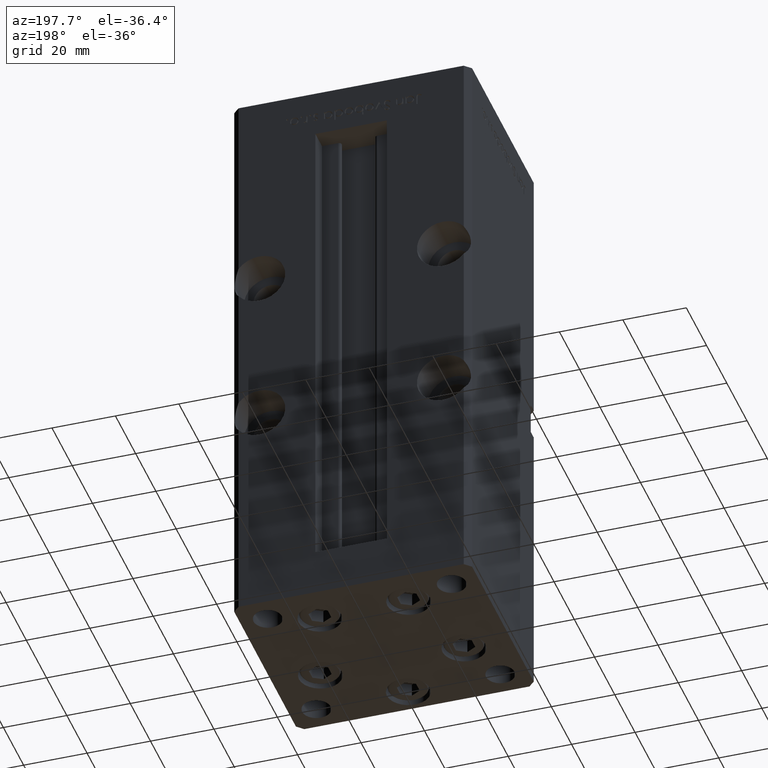
[diagram: clean part render]
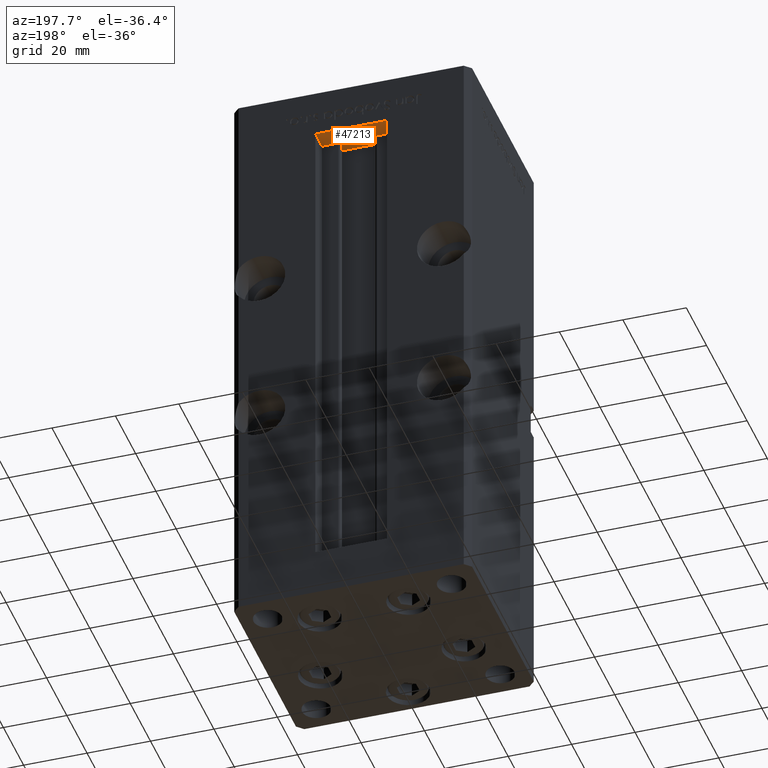
[diagram: same view with one face highlighted and labeled with its STEP entity id]
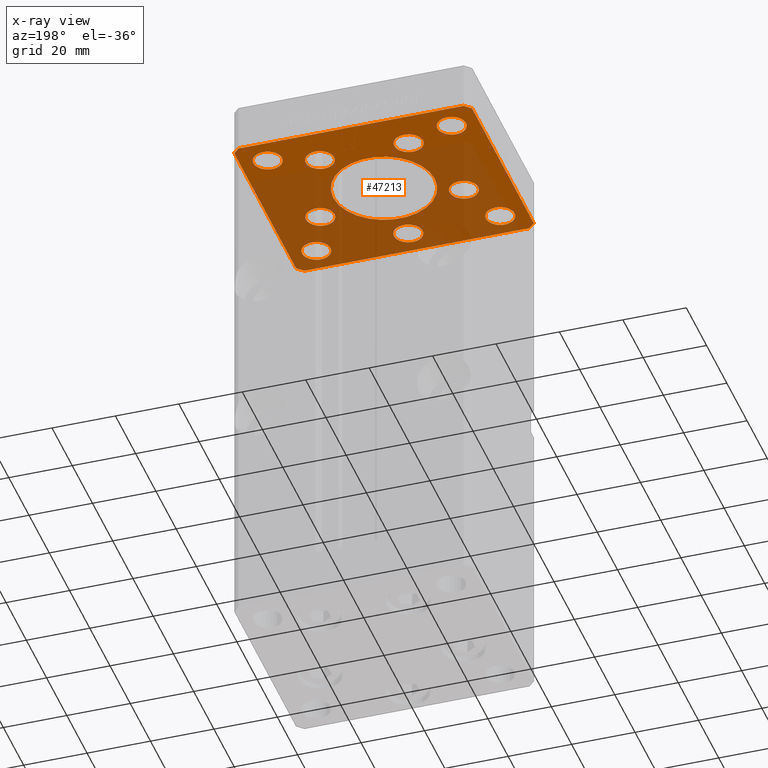
[diagram: x-ray of the same camera — body ghosted, the highlighted face saturated]
A machine part, auxiliary view. The second image highlights one B-rep face of the part: STEP entity #47213.
The next image is the same camera in x-ray: the body ghosted, the highlighted face saturated — about 62% of this face is hidden behind the body in this view.
In plain terms, the highlighted planar face has unit normal (0, 0, 1).
Its self-contained STEP definition (entity closure, byte-faithful):
#206 = VECTOR ( 'NONE', #37308, 1000.000000000000000 ) ;
#224 = EDGE_LOOP ( 'NONE', ( #35265, #31194, #7091, #4228, #47035, #1021, #17012, #4451 ) ) ;
#328 = CARTESIAN_POINT ( 'NONE',  ( 33.50000000000000000, 24.00000000000000355, -15.00000000000000000 ) ) ;
#426 = CARTESIAN_POINT ( 'NONE',  ( 29.00000000000000000, 24.00000000000000355, -15.00000000000000000 ) ) ;
#437 = CARTESIAN_POINT ( 'NONE',  ( 24.50000000000000711, -23.99999999999999645, -15.00000000000000000 ) ) ;
#459 = CARTESIAN_POINT ( 'NONE',  ( -27.12741699796953299, -8.000000000000000000, -15.00000000000000000 ) ) ;
#530 = CARTESIAN_POINT ( 'NONE',  ( 0.000000000000000000, 0.000000000000000000, -15.00000000000000000 ) ) ;
#577 = FACE_BOUND ( 'NONE', #50652, .T. ) ;
#632 = AXIS2_PLACEMENT_3D ( 'NONE', #50768, #34083, #17674 ) ;
#760 = EDGE_CURVE ( 'NONE', #32134, #36980, #21397, .T. ) ;
#772 = CARTESIAN_POINT ( 'NONE',  ( 13.99106857963324124, 19.50000000000000000, -15.00000000000000000 ) ) ;
#1021 = ORIENTED_EDGE ( 'NONE', *, *, #34895, .F. ) ;
#1064 = VERTEX_POINT ( 'NONE', #52619 ) ;
#1162 = ORIENTED_EDGE ( 'NONE', *, *, #28053, .T. ) ;
#1413 = LINE ( 'NONE', #13802, #38844 ) ;
#1865 = EDGE_CURVE ( 'NONE', #34707, #1064, #31251, .T. ) ;
#2002 = ORIENTED_EDGE ( 'NONE', *, *, #14079, .T. ) ;
#2268 = CARTESIAN_POINT ( 'NONE',  ( -35.50000000000000711, 32.49999999999997868, -15.00000000000000000 ) ) ;
#2507 = CIRCLE ( 'NONE', #37699, 4.499999999999997335 ) ;
#2510 = CARTESIAN_POINT ( 'NONE',  ( 0.000000000000000000, 0.000000000000000000, -15.00000000000000000 ) ) ;
#2638 = CARTESIAN_POINT ( 'NONE',  ( -22.62741699796953299, -8.000000000000000000, -15.00000000000000000 ) ) ;
#3296 = CIRCLE ( 'NONE', #17017, 4.500000000000000888 ) ;
#3502 = DIRECTION ( 'NONE',  ( 1.000000000000000000, 0.000000000000000000, 0.000000000000000000 ) ) ;
#4159 = AXIS2_PLACEMENT_3D ( 'NONE', #36281, #14773, #39500 ) ;
#4228 = ORIENTED_EDGE ( 'NONE', *, *, #11530, .F. ) ;
#4363 = PLANE ( 'NONE',  #46201 ) ;
#4451 = ORIENTED_EDGE ( 'NONE', *, *, #50103, .F. ) ;
#4624 = DIRECTION ( 'NONE',  ( -1.000000000000000000, 0.000000000000000000, 0.000000000000000000 ) ) ;
#4761 = VERTEX_POINT ( 'NONE', #34777 ) ;
#4888 = CARTESIAN_POINT ( 'NONE',  ( -16.00000000000000000, 1.959434878635765131E-15, -15.00000000000000000 ) ) ;
#5165 = CIRCLE ( 'NONE', #35239, 4.500000000000000888 ) ;
#5819 = EDGE_CURVE ( 'NONE', #45773, #50261, #7331, .T. ) ;
#5901 = DIRECTION ( 'NONE',  ( 1.000000000000000000, 0.000000000000000000, 0.000000000000000000 ) ) ;
#6174 = CARTESIAN_POINT ( 'NONE',  ( 22.62741699796953299, -8.000000000000000000, -15.00000000000000000 ) ) ;
#6410 = EDGE_CURVE ( 'NONE', #4761, #19772, #25357, .T. ) ;
#7091 = ORIENTED_EDGE ( 'NONE', *, *, #36788, .F. ) ;
#7169 = CIRCLE ( 'NONE', #29374, 4.500000000000000888 ) ;
#7287 = LINE ( 'NONE', #48157, #50924 ) ;
#7331 = CIRCLE ( 'NONE', #8221, 16.00000000000000000 ) ;
#7421 = CARTESIAN_POINT ( 'NONE',  ( -18.12741699796953654, -8.000000000000000000, -15.00000000000000000 ) ) ;
#7867 = CARTESIAN_POINT ( 'NONE',  ( -33.50000000000000000, -23.99999999999999645, -15.00000000000000000 ) ) ;
#8141 = FACE_BOUND ( 'NONE', #53120, .T. ) ;
#8185 = VECTOR ( 'NONE', #37922, 1000.000000000000000 ) ;
#8221 = AXIS2_PLACEMENT_3D ( 'NONE', #2510, #14880, #19422 ) ;
#8289 = VERTEX_POINT ( 'NONE', #26795 ) ;
#8506 = DIRECTION ( 'NONE',  ( 0.000000000000000000, 0.000000000000000000, 1.000000000000000000 ) ) ;
#8590 = CIRCLE ( 'NONE', #14584, 4.500000000000001776 ) ;
#8755 = CARTESIAN_POINT ( 'NONE',  ( 16.00000000000000000, 0.000000000000000000, -15.00000000000000000 ) ) ;
#8769 = ORIENTED_EDGE ( 'NONE', *, *, #46342, .F. ) ;
#8850 = EDGE_LOOP ( 'NONE', ( #16689, #14242 ) ) ;
#8919 = FACE_BOUND ( 'NONE', #9956, .T. ) ;
#8921 = CARTESIAN_POINT ( 'NONE',  ( 29.00000000000000355, -23.99999999999999645, -15.00000000000000000 ) ) ;
#9005 = VERTEX_POINT ( 'NONE', #459 ) ;
#9213 = DIRECTION ( 'NONE',  ( 0.7071067811865512365, -0.7071067811865439090, 0.000000000000000000 ) ) ;
#9315 = VERTEX_POINT ( 'NONE', #7421 ) ;
#9926 = CARTESIAN_POINT ( 'NONE',  ( -37.50000000000001421, 30.50000000000000000, -15.00000000000000000 ) ) ;
#9956 = EDGE_LOOP ( 'NONE', ( #46650, #33646 ) ) ;
#10193 = CIRCLE ( 'NONE', #4159, 4.499999999999999112 ) ;
#10431 = EDGE_CURVE ( 'NONE', #36980, #32134, #32347, .T. ) ;
#10597 = CARTESIAN_POINT ( 'NONE',  ( -35.50000000000001421, -32.50000000000000711, -15.00000000000000000 ) ) ;
#10977 = EDGE_CURVE ( 'NONE', #9315, #9005, #14316, .T. ) ;
#11530 = EDGE_CURVE ( 'NONE', #43486, #46973, #19956, .T. ) ;
#11571 = CARTESIAN_POINT ( 'NONE',  ( 18.12741699796953299, -8.000000000000000000, -15.00000000000000000 ) ) ;
#11620 = DIRECTION ( 'NONE',  ( -1.000000000000000000, 0.000000000000000000, 0.000000000000000000 ) ) ;
#12098 = CARTESIAN_POINT ( 'NONE',  ( 0.000000000000000000, -24.00000000000001066, -15.00000000000000000 ) ) ;
#12420 = CARTESIAN_POINT ( 'NONE',  ( 35.50000000000000000, 32.49999999999999289, -15.00000000000000000 ) ) ;
#12425 = EDGE_CURVE ( 'NONE', #19772, #4761, #41841, .T. ) ;
#12957 = DIRECTION ( 'NONE',  ( -0.000000000000000000, 0.000000000000000000, 1.000000000000000000 ) ) ;
#13314 = EDGE_CURVE ( 'NONE', #47049, #25084, #34164, .T. ) ;
#13383 = CARTESIAN_POINT ( 'NONE',  ( -29.00000000000000000, 24.00000000000000711, -15.00000000000000000 ) ) ;
#13580 = EDGE_CURVE ( 'NONE', #14526, #8289, #24737, .T. ) ;
#13672 = CIRCLE ( 'NONE', #48029, 16.00000000000000000 ) ;
#13802 = CARTESIAN_POINT ( 'NONE',  ( -37.50000000000000000, -30.50000000000004263, -15.00000000000000000 ) ) ;
#14079 = EDGE_CURVE ( 'NONE', #52381, #37505, #3296, .T. ) ;
#14242 = ORIENTED_EDGE ( 'NONE', *, *, #19504, .F. ) ;
#14316 = CIRCLE ( 'NONE', #21156, 4.499999999999997335 ) ;
#14513 = DIRECTION ( 'NONE',  ( -1.000000000000000000, 0.000000000000000000, 0.000000000000000000 ) ) ;
#14526 = VERTEX_POINT ( 'NONE', #35780 ) ;
#14584 = AXIS2_PLACEMENT_3D ( 'NONE', #12098, #28498, #3502 ) ;
#14773 = DIRECTION ( 'NONE',  ( 0.000000000000000000, -0.000000000000000000, -1.000000000000000000 ) ) ;
#14880 = DIRECTION ( 'NONE',  ( 0.000000000000000000, -0.000000000000000000, -1.000000000000000000 ) ) ;
#14906 = CARTESIAN_POINT ( 'NONE',  ( 27.12741699796953654, -8.000000000000000000, -15.00000000000000000 ) ) ;
#15534 = DIRECTION ( 'NONE',  ( 1.000000000000000000, 0.000000000000000000, 0.000000000000000000 ) ) ;
#15659 = DIRECTION ( 'NONE',  ( -0.000000000000000000, -0.000000000000000000, -1.000000000000000000 ) ) ;
#16241 = VECTOR ( 'NONE', #43463, 1000.000000000000000 ) ;
#16689 = ORIENTED_EDGE ( 'NONE', *, *, #23235, .F. ) ;
#16914 = CARTESIAN_POINT ( 'NONE',  ( -33.50000000000000000, 24.00000000000000711, -15.00000000000000000 ) ) ;
#16919 = DIRECTION ( 'NONE',  ( 1.000000000000000000, 0.000000000000000000, 0.000000000000000000 ) ) ;
#16968 = FACE_BOUND ( 'NONE', #38859, .T. ) ;
#17012 = ORIENTED_EDGE ( 'NONE', *, *, #13314, .F. ) ;
#17017 = AXIS2_PLACEMENT_3D ( 'NONE', #37756, #17298, #50111 ) ;
#17082 = DIRECTION ( 'NONE',  ( 1.000000000000000000, 0.000000000000000000, 0.000000000000000000 ) ) ;
#17298 = DIRECTION ( 'NONE',  ( 0.000000000000000000, 0.000000000000000000, 1.000000000000000000 ) ) ;
#17674 = DIRECTION ( 'NONE',  ( 1.000000000000000000, 0.000000000000000000, 0.000000000000000000 ) ) ;
#17703 = DIRECTION ( 'NONE',  ( 0.000000000000000000, -0.000000000000000000, -1.000000000000000000 ) ) ;
#17953 = AXIS2_PLACEMENT_3D ( 'NONE', #13383, #42144, #25223 ) ;
#18437 = ORIENTED_EDGE ( 'NONE', *, *, #40697, .F. ) ;
#18526 = DIRECTION ( 'NONE',  ( 0.000000000000000000, -0.000000000000000000, -1.000000000000000000 ) ) ;
#18664 = EDGE_CURVE ( 'NONE', #37505, #52381, #43659, .T. ) ;
#18883 = VECTOR ( 'NONE', #51421, 1000.000000000000000 ) ;
#19422 = DIRECTION ( 'NONE',  ( 1.000000000000000000, 0.000000000000000000, 0.000000000000000000 ) ) ;
#19434 = DIRECTION ( 'NONE',  ( 1.000000000000000000, 0.000000000000000000, 0.000000000000000000 ) ) ;
#19504 = EDGE_CURVE ( 'NONE', #19878, #35276, #47086, .T. ) ;
#19615 = AXIS2_PLACEMENT_3D ( 'NONE', #6174, #18526, #5901 ) ;
#19772 = VERTEX_POINT ( 'NONE', #40369 ) ;
#19878 = VERTEX_POINT ( 'NONE', #45443 ) ;
#19956 = LINE ( 'NONE', #12420, #44393 ) ;
#20222 = CARTESIAN_POINT ( 'NONE',  ( 0.000000000000000000, 0.000000000000000000, -15.00000000000000000 ) ) ;
#20708 = ORIENTED_EDGE ( 'NONE', *, *, #6410, .F. ) ;
#21156 = AXIS2_PLACEMENT_3D ( 'NONE', #2638, #51577, #38410 ) ;
#21266 = FACE_BOUND ( 'NONE', #25038, .T. ) ;
#21397 = CIRCLE ( 'NONE', #17953, 4.500000000000000888 ) ;
#21501 = CARTESIAN_POINT ( 'NONE',  ( 37.50000000000000711, 30.50000000000001421, -15.00000000000000000 ) ) ;
#22058 = CARTESIAN_POINT ( 'NONE',  ( 35.50000000000001421, -32.49999999999992184, -15.00000000000000000 ) ) ;
#23235 = EDGE_CURVE ( 'NONE', #35276, #19878, #8590, .T. ) ;
#23743 = DIRECTION ( 'NONE',  ( 0.000000000000000000, 0.000000000000000000, 1.000000000000000000 ) ) ;
#23896 = AXIS2_PLACEMENT_3D ( 'NONE', #46031, #25882, #33410 ) ;
#24736 = DIRECTION ( 'NONE',  ( 0.000000000000000000, -0.000000000000000000, -1.000000000000000000 ) ) ;
#24737 = CIRCLE ( 'NONE', #47091, 4.499999999999999112 ) ;
#24933 = EDGE_CURVE ( 'NONE', #46915, #27574, #5165, .T. ) ;
#25038 = EDGE_LOOP ( 'NONE', ( #32282, #2002 ) ) ;
#25084 = VERTEX_POINT ( 'NONE', #41981 ) ;
#25223 = DIRECTION ( 'NONE',  ( -1.000000000000000000, 0.000000000000000000, 0.000000000000000000 ) ) ;
#25357 = CIRCLE ( 'NONE', #46831, 4.500000000000005329 ) ;
#25473 = ORIENTED_EDGE ( 'NONE', *, *, #33437, .T. ) ;
#25527 = ORIENTED_EDGE ( 'NONE', *, *, #33717, .F. ) ;
#25813 = LINE ( 'NONE', #21501, #8185 ) ;
#25882 = DIRECTION ( 'NONE',  ( 0.000000000000000000, -0.000000000000000000, -1.000000000000000000 ) ) ;
#26414 = AXIS2_PLACEMENT_3D ( 'NONE', #8921, #45748, #4624 ) ;
#26729 = CARTESIAN_POINT ( 'NONE',  ( 22.62741699796953299, -8.000000000000000000, -15.00000000000000000 ) ) ;
#26795 = CARTESIAN_POINT ( 'NONE',  ( -18.49106857963323947, 19.50000000000000000, -15.00000000000000000 ) ) ;
#26819 = LINE ( 'NONE', #27076, #16241 ) ;
#26864 = EDGE_LOOP ( 'NONE', ( #39977, #42052 ) ) ;
#26941 = VERTEX_POINT ( 'NONE', #437 ) ;
#27076 = CARTESIAN_POINT ( 'NONE',  ( -35.50000000000001421, -32.50000000000000711, -15.00000000000000000 ) ) ;
#27574 = VERTEX_POINT ( 'NONE', #11571 ) ;
#27980 = VERTEX_POINT ( 'NONE', #10597 ) ;
#28053 = EDGE_CURVE ( 'NONE', #29085, #44818, #41351, .T. ) ;
#28498 = DIRECTION ( 'NONE',  ( 0.000000000000000000, -0.000000000000000000, -1.000000000000000000 ) ) ;
#29000 = VECTOR ( 'NONE', #50844, 1000.000000000000000 ) ;
#29085 = VERTEX_POINT ( 'NONE', #32826 ) ;
#29374 = AXIS2_PLACEMENT_3D ( 'NONE', #426, #8506, #17082 ) ;
#29758 = EDGE_CURVE ( 'NONE', #1064, #27980, #1413, .T. ) ;
#29900 = CIRCLE ( 'NONE', #19615, 4.500000000000000888 ) ;
#30602 = ORIENTED_EDGE ( 'NONE', *, *, #10977, .F. ) ;
#31194 = ORIENTED_EDGE ( 'NONE', *, *, #1865, .F. ) ;
#31251 = LINE ( 'NONE', #47394, #18883 ) ;
#31432 = ORIENTED_EDGE ( 'NONE', *, *, #10431, .F. ) ;
#31827 = DIRECTION ( 'NONE',  ( 0.000000000000000000, 0.000000000000000000, 1.000000000000000000 ) ) ;
#32134 = VERTEX_POINT ( 'NONE', #44673 ) ;
#32282 = ORIENTED_EDGE ( 'NONE', *, *, #18664, .T. ) ;
#32306 = VERTEX_POINT ( 'NONE', #51084 ) ;
#32347 = CIRCLE ( 'NONE', #39228, 4.500000000000000888 ) ;
#32535 = CARTESIAN_POINT ( 'NONE',  ( 37.50000000000000711, 30.50000000000001421, -15.00000000000000000 ) ) ;
#32826 = CARTESIAN_POINT ( 'NONE',  ( 24.50000000000000000, 24.00000000000000355, -15.00000000000000000 ) ) ;
#32916 = DIRECTION ( 'NONE',  ( 1.000000000000000000, 0.000000000000000000, 0.000000000000000000 ) ) ;
#32996 = LINE ( 'NONE', #41331, #206 ) ;
#33071 = CARTESIAN_POINT ( 'NONE',  ( 35.50000000000001421, -32.49999999999992184, -15.00000000000000000 ) ) ;
#33117 = FACE_BOUND ( 'NONE', #38471, .T. ) ;
#33410 = DIRECTION ( 'NONE',  ( 1.000000000000000000, 0.000000000000000000, 0.000000000000000000 ) ) ;
#33437 = EDGE_CURVE ( 'NONE', #44818, #29085, #7169, .T. ) ;
#33646 = ORIENTED_EDGE ( 'NONE', *, *, #5819, .F. ) ;
#33717 = EDGE_CURVE ( 'NONE', #9005, #9315, #46666, .T. ) ;
#34083 = DIRECTION ( 'NONE',  ( 0.000000000000000000, -0.000000000000000000, -1.000000000000000000 ) ) ;
#34164 = LINE ( 'NONE', #22058, #29000 ) ;
#34431 = ORIENTED_EDGE ( 'NONE', *, *, #13580, .F. ) ;
#34540 = CARTESIAN_POINT ( 'NONE',  ( 4.500000000000001776, -24.00000000000001066, -15.00000000000000000 ) ) ;
#34707 = VERTEX_POINT ( 'NONE', #9926 ) ;
#34777 = CARTESIAN_POINT ( 'NONE',  ( 9.491068579633235913, 19.50000000000000000, -15.00000000000000000 ) ) ;
#34895 = EDGE_CURVE ( 'NONE', #25084, #40789, #32996, .T. ) ;
#35083 = AXIS2_PLACEMENT_3D ( 'NONE', #44448, #31827, #40156 ) ;
#35239 = AXIS2_PLACEMENT_3D ( 'NONE', #26729, #39351, #19434 ) ;
#35265 = ORIENTED_EDGE ( 'NONE', *, *, #29758, .F. ) ;
#35276 = VERTEX_POINT ( 'NONE', #34540 ) ;
#35393 = ORIENTED_EDGE ( 'NONE', *, *, #760, .F. ) ;
#35780 = CARTESIAN_POINT ( 'NONE',  ( -9.491068579633243019, 19.50000000000000000, -15.00000000000000000 ) ) ;
#35978 = CARTESIAN_POINT ( 'NONE',  ( -13.99106857963324124, 19.50000000000000000, -15.00000000000000000 ) ) ;
#36281 = CARTESIAN_POINT ( 'NONE',  ( -13.99106857963324124, 19.50000000000000000, -15.00000000000000000 ) ) ;
#36700 = CARTESIAN_POINT ( 'NONE',  ( -22.62741699796953299, -8.000000000000000000, -15.00000000000000000 ) ) ;
#36788 = EDGE_CURVE ( 'NONE', #46973, #34707, #7287, .T. ) ;
#36926 = FACE_OUTER_BOUND ( 'NONE', #224, .T. ) ;
#36980 = VERTEX_POINT ( 'NONE', #16914 ) ;
#37308 = DIRECTION ( 'NONE',  ( 0.000000000000000000, 1.000000000000000000, 0.000000000000000000 ) ) ;
#37505 = VERTEX_POINT ( 'NONE', #48033 ) ;
#37699 = AXIS2_PLACEMENT_3D ( 'NONE', #38986, #50535, #14513 ) ;
#37756 = CARTESIAN_POINT ( 'NONE',  ( -29.00000000000000000, -23.99999999999999645, -15.00000000000000000 ) ) ;
#37922 = DIRECTION ( 'NONE',  ( -0.7071067811865524577, 0.7071067811865426878, 0.000000000000000000 ) ) ;
#38410 = DIRECTION ( 'NONE',  ( 1.000000000000000000, 0.000000000000000000, 0.000000000000000000 ) ) ;
#38471 = EDGE_LOOP ( 'NONE', ( #44562, #20708 ) ) ;
#38844 = VECTOR ( 'NONE', #9213, 1000.000000000000000 ) ;
#38859 = EDGE_LOOP ( 'NONE', ( #30602, #25527 ) ) ;
#38986 = CARTESIAN_POINT ( 'NONE',  ( 29.00000000000000355, -23.99999999999999645, -15.00000000000000000 ) ) ;
#39085 = EDGE_CURVE ( 'NONE', #40789, #43486, #25813, .T. ) ;
#39228 = AXIS2_PLACEMENT_3D ( 'NONE', #52493, #15659, #11620 ) ;
#39351 = DIRECTION ( 'NONE',  ( 0.000000000000000000, -0.000000000000000000, -1.000000000000000000 ) ) ;
#39500 = DIRECTION ( 'NONE',  ( 1.000000000000000000, 0.000000000000000000, 0.000000000000000000 ) ) ;
#39741 = EDGE_LOOP ( 'NONE', ( #35393, #31432 ) ) ;
#39977 = ORIENTED_EDGE ( 'NONE', *, *, #24933, .F. ) ;
#40156 = DIRECTION ( 'NONE',  ( 1.000000000000000000, 0.000000000000000000, 0.000000000000000000 ) ) ;
#40369 = CARTESIAN_POINT ( 'NONE',  ( 18.49106857963324657, 19.50000000000000000, -15.00000000000000000 ) ) ;
#40397 = DIRECTION ( 'NONE',  ( -1.000000000000000000, -1.954618001100627573E-16, 0.000000000000000000 ) ) ;
#40410 = DIRECTION ( 'NONE',  ( 1.000000000000000000, 0.000000000000000000, 0.000000000000000000 ) ) ;
#40697 = EDGE_CURVE ( 'NONE', #26941, #32306, #46127, .T. ) ;
#40789 = VERTEX_POINT ( 'NONE', #32535 ) ;
#40870 = DIRECTION ( 'NONE',  ( -0.7071067811865524577, -0.7071067811865426878, 0.000000000000000000 ) ) ;
#41195 = FACE_BOUND ( 'NONE', #8850, .T. ) ;
#41331 = CARTESIAN_POINT ( 'NONE',  ( 37.50000000000000711, -30.49999999999992895, -15.00000000000000000 ) ) ;
#41351 = CIRCLE ( 'NONE', #43932, 4.500000000000000888 ) ;
#41640 = DIRECTION ( 'NONE',  ( 1.000000000000000000, 0.000000000000000000, 0.000000000000000000 ) ) ;
#41704 = DIRECTION ( 'NONE',  ( 1.000000000000000000, 0.000000000000000000, 0.000000000000000000 ) ) ;
#41841 = CIRCLE ( 'NONE', #632, 4.500000000000005329 ) ;
#41981 = CARTESIAN_POINT ( 'NONE',  ( 37.50000000000000711, -30.49999999999992895, -15.00000000000000000 ) ) ;
#42052 = ORIENTED_EDGE ( 'NONE', *, *, #43036, .F. ) ;
#42144 = DIRECTION ( 'NONE',  ( -0.000000000000000000, -0.000000000000000000, -1.000000000000000000 ) ) ;
#43036 = EDGE_CURVE ( 'NONE', #27574, #46915, #29900, .T. ) ;
#43463 = DIRECTION ( 'NONE',  ( 1.000000000000000000, 1.172770800660376149E-15, 0.000000000000000000 ) ) ;
#43486 = VERTEX_POINT ( 'NONE', #46913 ) ;
#43635 = CARTESIAN_POINT ( 'NONE',  ( 29.00000000000000000, 24.00000000000000355, -15.00000000000000000 ) ) ;
#43659 = CIRCLE ( 'NONE', #35083, 4.500000000000000888 ) ;
#43932 = AXIS2_PLACEMENT_3D ( 'NONE', #43635, #23743, #40410 ) ;
#44393 = VECTOR ( 'NONE', #40397, 1000.000000000000000 ) ;
#44448 = CARTESIAN_POINT ( 'NONE',  ( -29.00000000000000000, -23.99999999999999645, -15.00000000000000000 ) ) ;
#44562 = ORIENTED_EDGE ( 'NONE', *, *, #12425, .F. ) ;
#44673 = CARTESIAN_POINT ( 'NONE',  ( -24.50000000000000000, 24.00000000000000711, -15.00000000000000000 ) ) ;
#44818 = VERTEX_POINT ( 'NONE', #328 ) ;
#44966 = FACE_BOUND ( 'NONE', #26864, .T. ) ;
#45443 = CARTESIAN_POINT ( 'NONE',  ( -4.500000000000001776, -24.00000000000001066, -15.00000000000000000 ) ) ;
#45681 = AXIS2_PLACEMENT_3D ( 'NONE', #36700, #52566, #32916 ) ;
#45748 = DIRECTION ( 'NONE',  ( -0.000000000000000000, -0.000000000000000000, -1.000000000000000000 ) ) ;
#45773 = VERTEX_POINT ( 'NONE', #4888 ) ;
#46031 = CARTESIAN_POINT ( 'NONE',  ( 0.000000000000000000, -24.00000000000001066, -15.00000000000000000 ) ) ;
#46127 = CIRCLE ( 'NONE', #26414, 4.499999999999997335 ) ;
#46201 = AXIS2_PLACEMENT_3D ( 'NONE', #20222, #12957, #41704 ) ;
#46342 = EDGE_CURVE ( 'NONE', #8289, #14526, #10193, .T. ) ;
#46650 = ORIENTED_EDGE ( 'NONE', *, *, #49166, .F. ) ;
#46666 = CIRCLE ( 'NONE', #45681, 4.499999999999997335 ) ;
#46831 = AXIS2_PLACEMENT_3D ( 'NONE', #772, #17703, #41640 ) ;
#46913 = CARTESIAN_POINT ( 'NONE',  ( 35.50000000000000000, 32.49999999999999289, -15.00000000000000000 ) ) ;
#46915 = VERTEX_POINT ( 'NONE', #14906 ) ;
#46973 = VERTEX_POINT ( 'NONE', #2268 ) ;
#47035 = ORIENTED_EDGE ( 'NONE', *, *, #39085, .F. ) ;
#47049 = VERTEX_POINT ( 'NONE', #33071 ) ;
#47086 = CIRCLE ( 'NONE', #23896, 4.500000000000001776 ) ;
#47091 = AXIS2_PLACEMENT_3D ( 'NONE', #35978, #52369, #15534 ) ;
#47213 = ADVANCED_FACE ( 'NONE', ( #8919, #16968, #41195, #44966, #33117, #577, #8141, #21266, #36926, #49270, #50050 ), #4363, .F. ) ;
#47394 = CARTESIAN_POINT ( 'NONE',  ( -37.50000000000001421, 30.50000000000000000, -15.00000000000000000 ) ) ;
#48029 = AXIS2_PLACEMENT_3D ( 'NONE', #530, #24736, #16919 ) ;
#48033 = CARTESIAN_POINT ( 'NONE',  ( -24.50000000000000000, -23.99999999999999645, -15.00000000000000000 ) ) ;
#48157 = CARTESIAN_POINT ( 'NONE',  ( -35.50000000000000711, 32.49999999999997868, -15.00000000000000000 ) ) ;
#48733 = EDGE_LOOP ( 'NONE', ( #52747, #18437 ) ) ;
#49166 = EDGE_CURVE ( 'NONE', #50261, #45773, #13672, .T. ) ;
#49253 = EDGE_CURVE ( 'NONE', #32306, #26941, #2507, .T. ) ;
#49270 = FACE_BOUND ( 'NONE', #39741, .T. ) ;
#50050 = FACE_BOUND ( 'NONE', #48733, .T. ) ;
#50103 = EDGE_CURVE ( 'NONE', #27980, #47049, #26819, .T. ) ;
#50111 = DIRECTION ( 'NONE',  ( 1.000000000000000000, 0.000000000000000000, 0.000000000000000000 ) ) ;
#50261 = VERTEX_POINT ( 'NONE', #8755 ) ;
#50535 = DIRECTION ( 'NONE',  ( -0.000000000000000000, -0.000000000000000000, -1.000000000000000000 ) ) ;
#50652 = EDGE_LOOP ( 'NONE', ( #34431, #8769 ) ) ;
#50768 = CARTESIAN_POINT ( 'NONE',  ( 13.99106857963324124, 19.50000000000000000, -15.00000000000000000 ) ) ;
#50844 = DIRECTION ( 'NONE',  ( 0.7071067811865463515, 0.7071067811865487940, 0.000000000000000000 ) ) ;
#50924 = VECTOR ( 'NONE', #40870, 1000.000000000000000 ) ;
#51084 = CARTESIAN_POINT ( 'NONE',  ( 33.50000000000000000, -23.99999999999999645, -15.00000000000000000 ) ) ;
#51421 = DIRECTION ( 'NONE',  ( 2.275047181608926165E-16, -1.000000000000000000, 0.000000000000000000 ) ) ;
#51577 = DIRECTION ( 'NONE',  ( 0.000000000000000000, -0.000000000000000000, -1.000000000000000000 ) ) ;
#52369 = DIRECTION ( 'NONE',  ( 0.000000000000000000, -0.000000000000000000, -1.000000000000000000 ) ) ;
#52381 = VERTEX_POINT ( 'NONE', #7867 ) ;
#52493 = CARTESIAN_POINT ( 'NONE',  ( -29.00000000000000000, 24.00000000000000711, -15.00000000000000000 ) ) ;
#52566 = DIRECTION ( 'NONE',  ( 0.000000000000000000, -0.000000000000000000, -1.000000000000000000 ) ) ;
#52619 = CARTESIAN_POINT ( 'NONE',  ( -37.50000000000000000, -30.50000000000004263, -15.00000000000000000 ) ) ;
#52747 = ORIENTED_EDGE ( 'NONE', *, *, #49253, .F. ) ;
#53120 = EDGE_LOOP ( 'NONE', ( #25473, #1162 ) ) ;